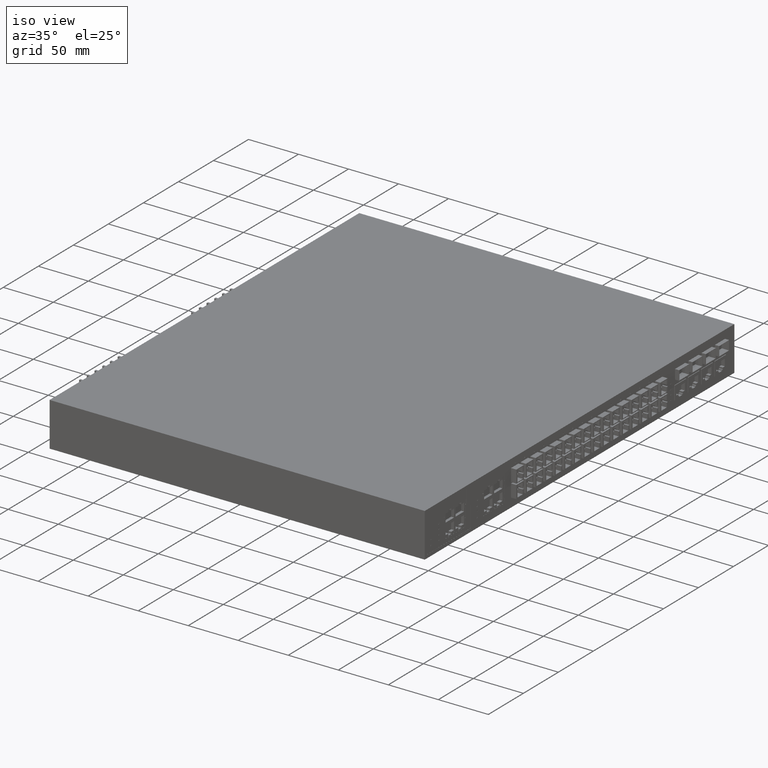
[diagram: clean part render]
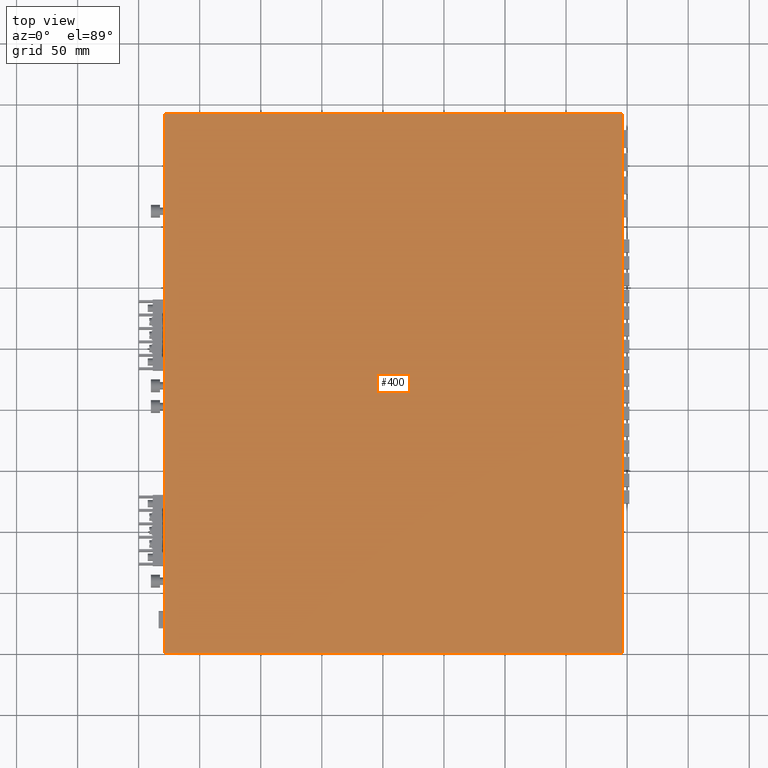
[diagram: tour spotlight — one face highlighted and labeled with its STEP entity id]
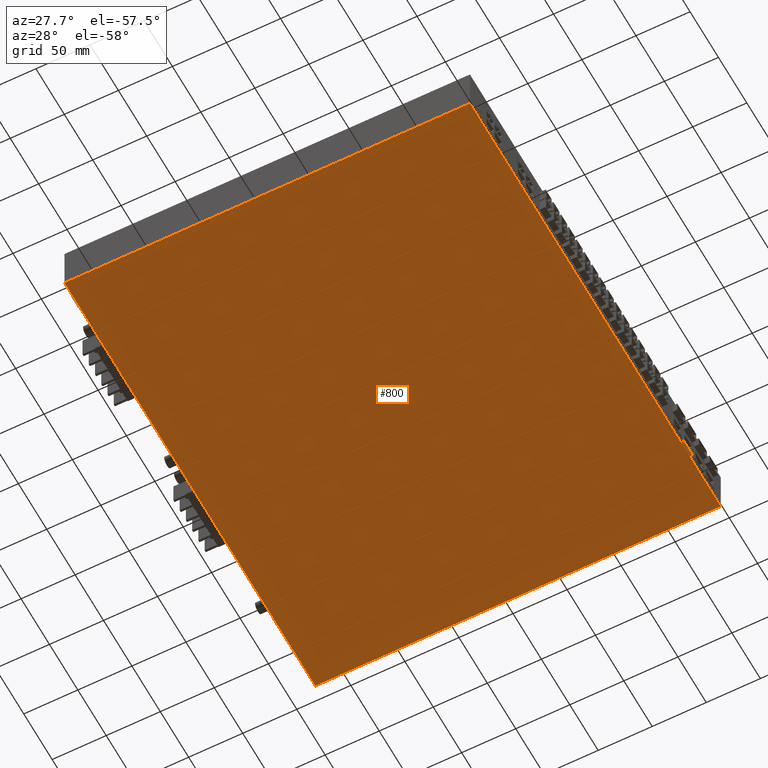
[diagram: tour spotlight — one face highlighted and labeled with its STEP entity id]
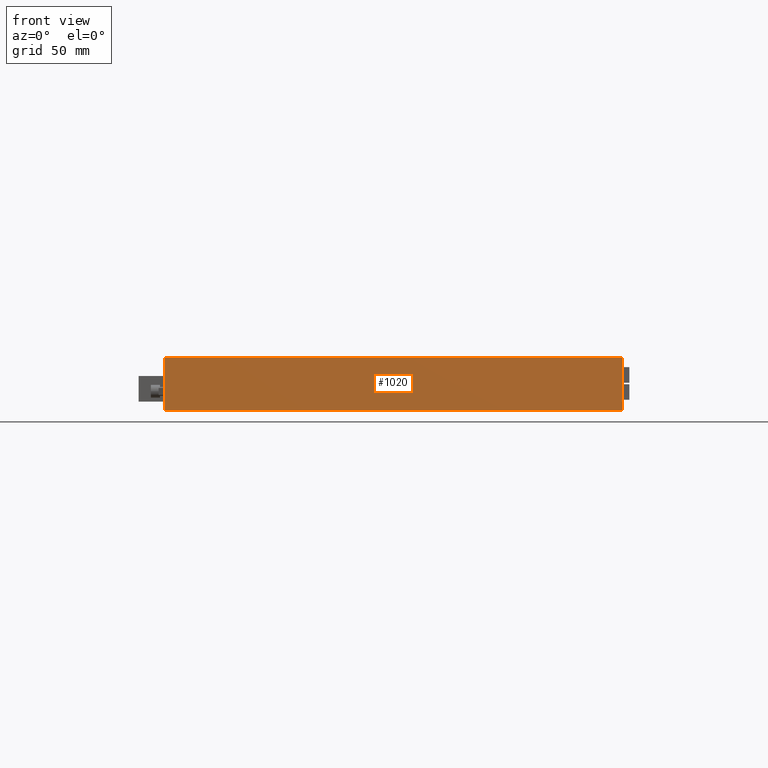
[diagram: tour spotlight — one face highlighted and labeled with its STEP entity id]
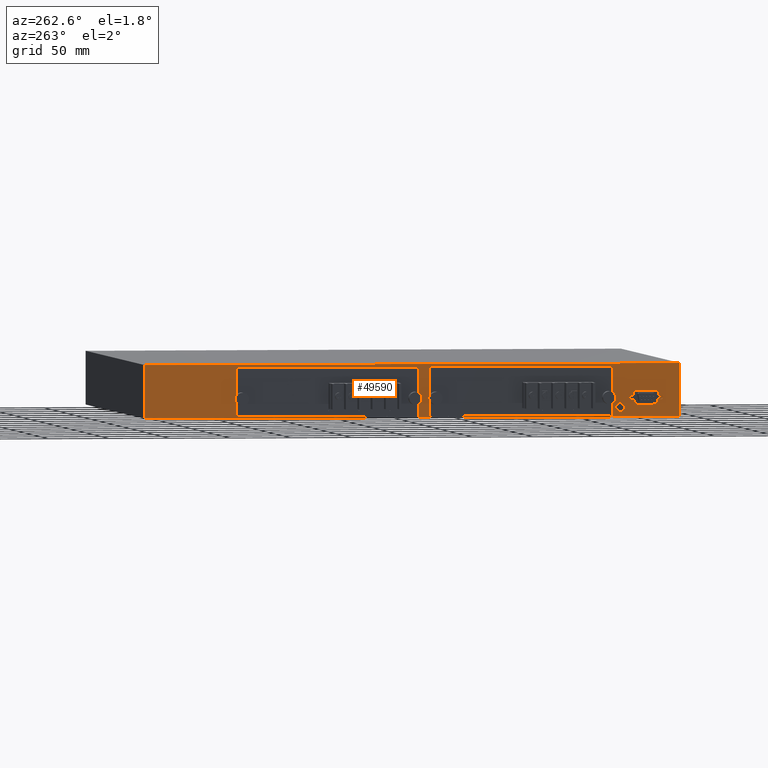
[diagram: tour spotlight — one face highlighted and labeled with its STEP entity id]
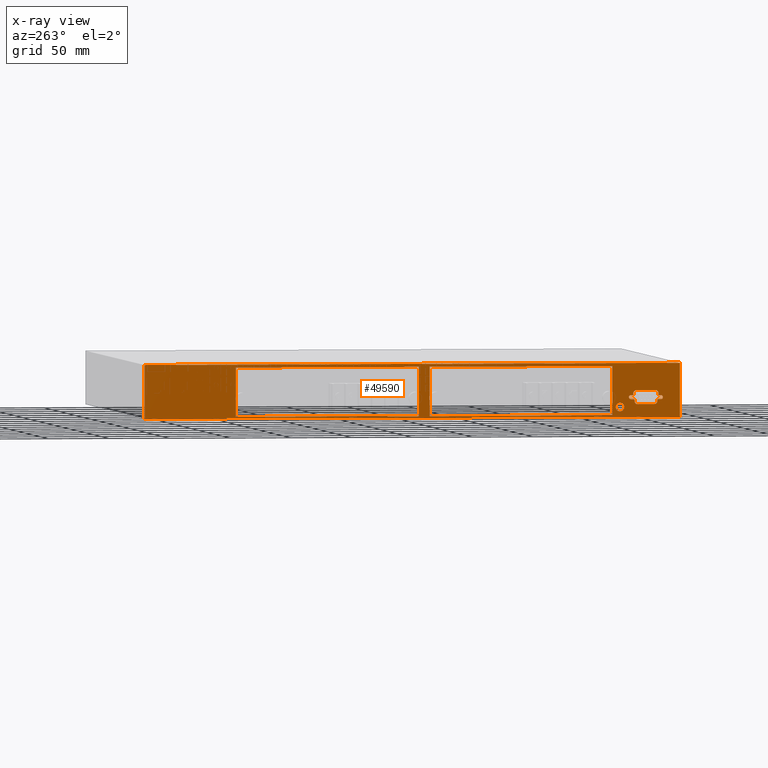
[diagram: x-ray of the same camera — body ghosted, this tour face saturated]
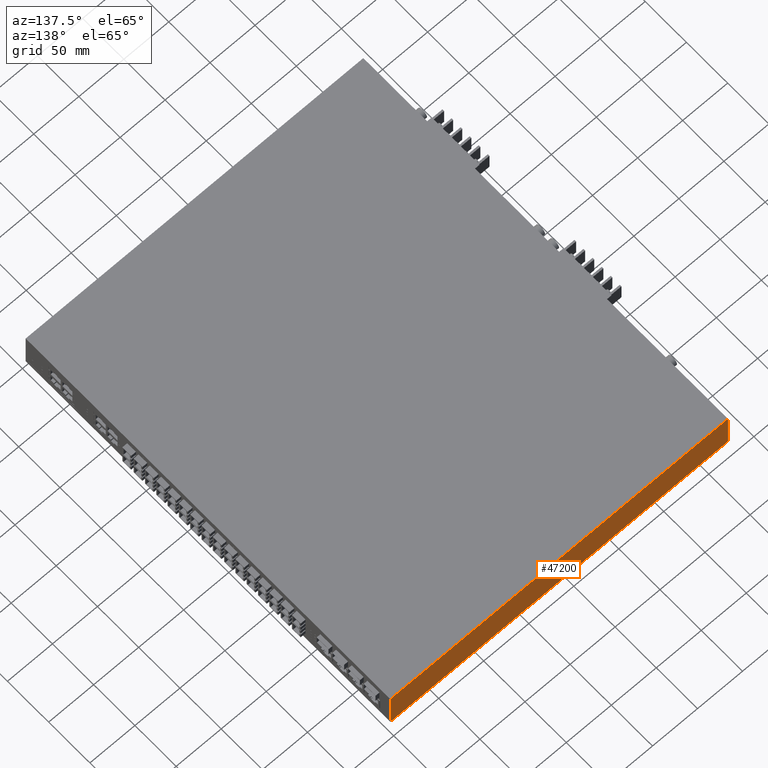
[diagram: tour spotlight — one face highlighted and labeled with its STEP entity id]
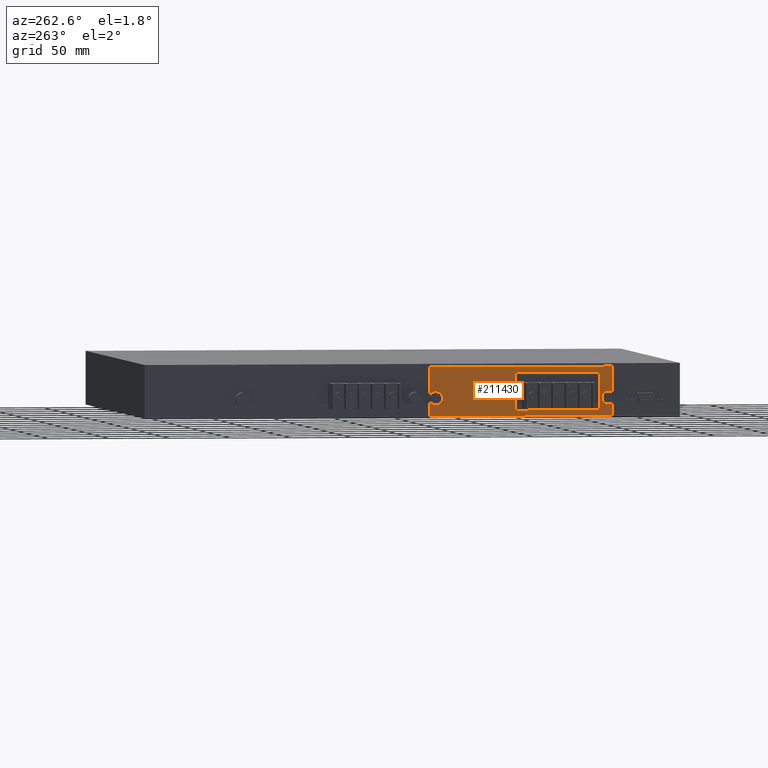
[diagram: tour spotlight — one face highlighted and labeled with its STEP entity id]
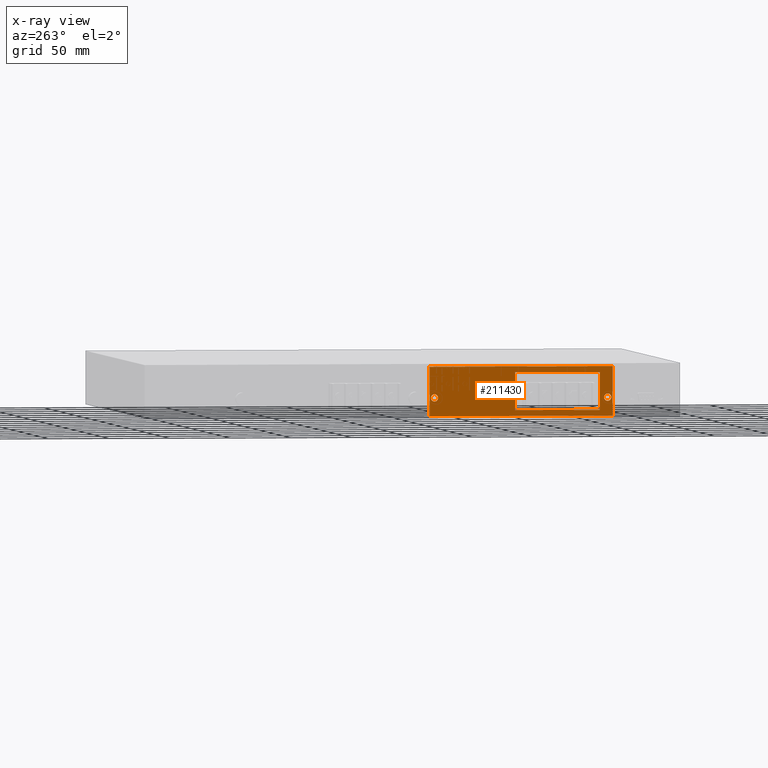
[diagram: x-ray of the same camera — body ghosted, this tour face saturated]
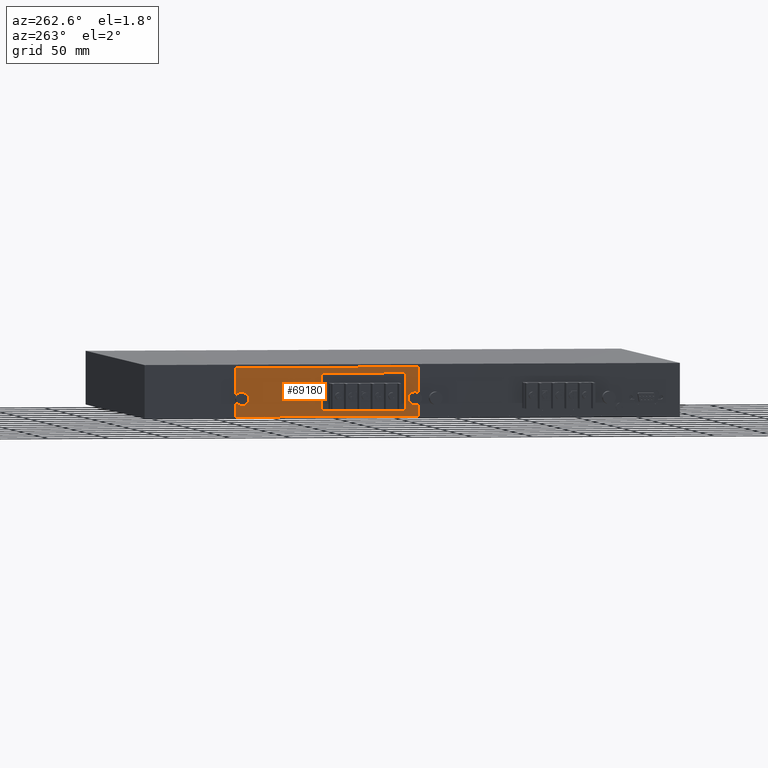
[diagram: tour spotlight — one face highlighted and labeled with its STEP entity id]
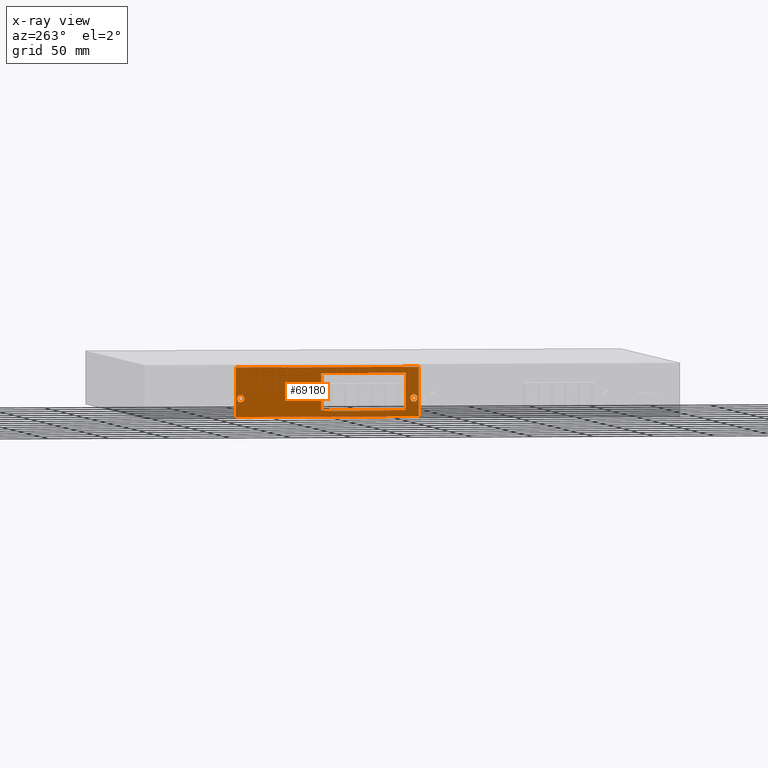
[diagram: x-ray of the same camera — body ghosted, this tour face saturated]
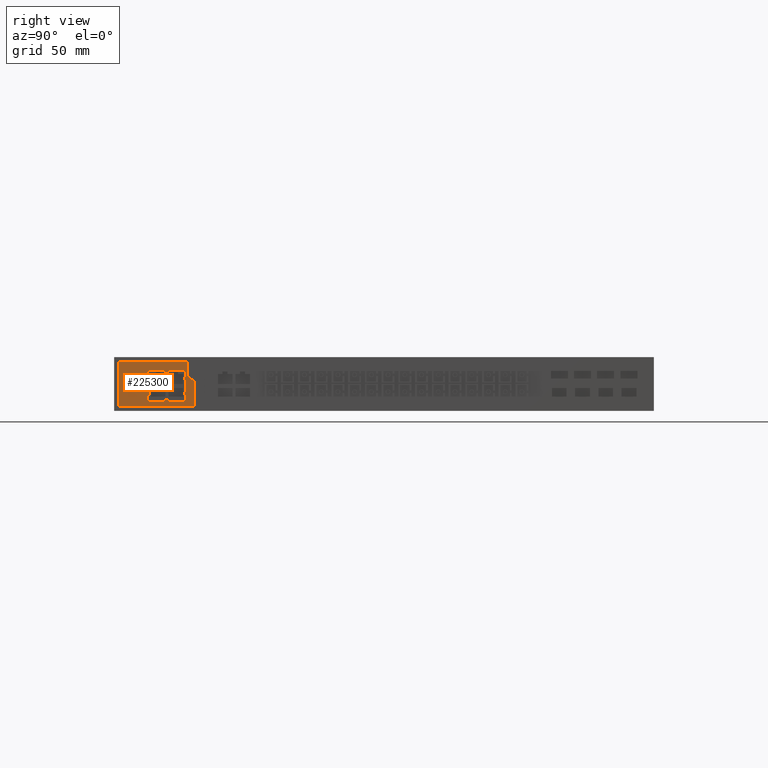
[diagram: tour spotlight — one face highlighted and labeled with its STEP entity id]
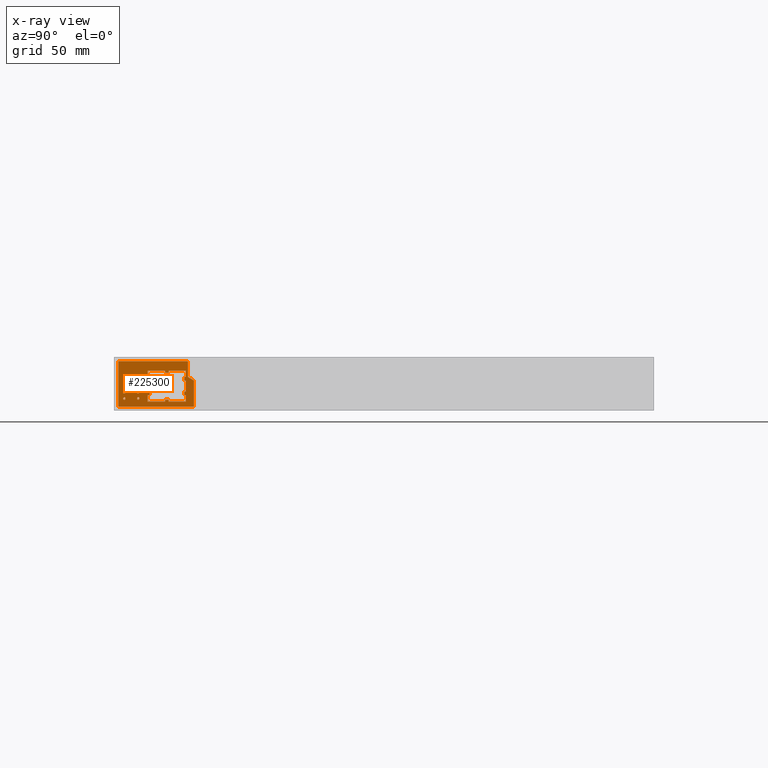
[diagram: x-ray of the same camera — body ghosted, this tour face saturated]
A machine part: a face-by-face anatomy tour. The part has 1324 B-rep faces; the first image is the clean iso view, then the 8 largest visible faces are spotlighted one at a time (largest first), each with its STEP entity span.

Face 1 — top view, entity #400. In plain terms, the highlighted planar face has unit normal (0, 0, 1).
Definition (entity closure, byte-faithful):
#10=CARTESIAN_POINT('',(-231.744053107435,4.40363222366137,
384.37506614998));
#20=DIRECTION('',(-0.,1.,0.));
#30=DIRECTION('',(1.,0.,0.));
#40=AXIS2_PLACEMENT_3D('',#10,#20,#30);
#50=PLANE('',#40);
#60=CARTESIAN_POINT('',(0.,4.40363222366137,-1.97246663447004E-11));
#70=DIRECTION('',(-1.,0.,0.));
#80=VECTOR('',#70,1.);
#90=LINE('',#60,#80);
#100=CARTESIAN_POINT('',(221.306013042565,4.40363222366137,-1.9725E-11))
;
#110=VERTEX_POINT('',#100);
#120=CARTESIAN_POINT('',(-220.693986957435,4.40363222366137,-1.9725E-11)
);
#130=VERTEX_POINT('',#120);
#140=EDGE_CURVE('',#110,#130,#90,.T.);
#150=ORIENTED_EDGE('',*,*,#140,.T.);
#160=CARTESIAN_POINT('',(221.306013042565,4.40363222366137,0.));
#170=DIRECTION('',(0.,0.,1.));
#180=VECTOR('',#170,1.);
#190=LINE('',#160,#180);
#200=CARTESIAN_POINT('',(221.306013042565,4.40363222366137,
374.99999999998));
#210=VERTEX_POINT('',#200);
#220=EDGE_CURVE('',#110,#210,#190,.T.);
#230=ORIENTED_EDGE('',*,*,#220,.F.);
#240=CARTESIAN_POINT('',(0.,4.40363222366137,374.99999999998));
#250=DIRECTION('',(-1.,0.,0.));
#260=VECTOR('',#250,1.);
#270=LINE('',#240,#260);
#280=CARTESIAN_POINT('',(-220.693986957435,4.40363222366137,
374.99999999998));
#290=VERTEX_POINT('',#280);
#300=EDGE_CURVE('',#210,#290,#270,.T.);
#310=ORIENTED_EDGE('',*,*,#300,.F.);
#320=CARTESIAN_POINT('',(-220.693986957435,4.40363222366137,0.));
#330=DIRECTION('',(0.,0.,-1.));
#340=VECTOR('',#330,1.);
#350=LINE('',#320,#340);
#360=EDGE_CURVE('',#290,#130,#350,.T.);
#370=ORIENTED_EDGE('',*,*,#360,.F.);
#380=EDGE_LOOP('',(#370,#310,#230,#150));
#390=FACE_OUTER_BOUND('',#380,.T.);
#400=ADVANCED_FACE('',(#390),#50,.T.);

Face 2 — auxiliary view, entity #800. In plain terms, the highlighted planar face has unit normal (-0, -0, -1).
Definition (entity closure, byte-faithful):
#410=CARTESIAN_POINT('',(232.356079192565,-39.5963677763395,
384.37506614998));
#420=DIRECTION('',(-0.,-1.,-0.));
#430=DIRECTION('',(-1.,0.,0.));
#440=AXIS2_PLACEMENT_3D('',#410,#420,#430);
#450=PLANE('',#440);
#460=CARTESIAN_POINT('',(-220.693986957435,-39.5963677763395,0.));
#470=DIRECTION('',(0.,0.,1.));
#480=VECTOR('',#470,1.);
#490=LINE('',#460,#480);
#500=CARTESIAN_POINT('',(-220.693986957435,-39.5963677763395,-1.9725E-11
));
#510=VERTEX_POINT('',#500);
#520=CARTESIAN_POINT('',(-220.693986957435,-39.5963677763395,
374.99999999998));
#530=VERTEX_POINT('',#520);
#540=EDGE_CURVE('',#510,#530,#490,.T.);
#550=ORIENTED_EDGE('',*,*,#540,.F.);
#560=CARTESIAN_POINT('',(0.,-39.5963677763395,374.99999999998));
#570=DIRECTION('',(1.,0.,0.));
#580=VECTOR('',#570,1.);
#590=LINE('',#560,#580);
#600=CARTESIAN_POINT('',(221.306013042565,-39.5963677763395,
374.99999999998));
#610=VERTEX_POINT('',#600);
#620=EDGE_CURVE('',#530,#610,#590,.T.);
#630=ORIENTED_EDGE('',*,*,#620,.F.);
#640=CARTESIAN_POINT('',(221.306013042565,-39.5963677763395,0.));
#650=DIRECTION('',(0.,0.,-1.));
#660=VECTOR('',#650,1.);
#670=LINE('',#640,#660);
#680=CARTESIAN_POINT('',(221.306013042565,-39.5963677763395,-1.9725E-11)
);
#690=VERTEX_POINT('',#680);
#700=EDGE_CURVE('',#610,#690,#670,.T.);
#710=ORIENTED_EDGE('',*,*,#700,.F.);
#720=CARTESIAN_POINT('',(0.,-39.5963677763395,-1.97246663447004E-11));
#730=DIRECTION('',(1.,0.,0.));
#740=VECTOR('',#730,1.);
#750=LINE('',#720,#740);
#760=EDGE_CURVE('',#510,#690,#750,.T.);
#770=ORIENTED_EDGE('',*,*,#760,.T.);
#780=EDGE_LOOP('',(#770,#710,#630,#550));
#790=FACE_OUTER_BOUND('',#780,.T.);
#800=ADVANCED_FACE('',(#790),#450,.T.);

Face 3 — front view, entity #1020. In plain terms, the highlighted planar face has unit normal (0, -1, 0).
Definition (entity closure, byte-faithful):
#120=CARTESIAN_POINT('',(-220.693986957435,4.40363222366137,-1.9725E-11)
);
#130=VERTEX_POINT('',#120);
#280=CARTESIAN_POINT('',(-220.693986957435,4.40363222366137,
374.99999999998));
#290=VERTEX_POINT('',#280);
#320=CARTESIAN_POINT('',(-220.693986957435,4.40363222366137,0.));
#330=DIRECTION('',(0.,0.,-1.));
#340=VECTOR('',#330,1.);
#350=LINE('',#320,#340);
#360=EDGE_CURVE('',#290,#130,#350,.T.);
#460=CARTESIAN_POINT('',(-220.693986957435,-39.5963677763395,0.));
#470=DIRECTION('',(0.,0.,1.));
#480=VECTOR('',#470,1.);
#490=LINE('',#460,#480);
#500=CARTESIAN_POINT('',(-220.693986957435,-39.5963677763395,-1.9725E-11
));
#510=VERTEX_POINT('',#500);
#520=CARTESIAN_POINT('',(-220.693986957435,-39.5963677763395,
374.99999999998));
#530=VERTEX_POINT('',#520);
#540=EDGE_CURVE('',#510,#530,#490,.T.);
#810=CARTESIAN_POINT('',(-220.693986957435,-40.6964339263395,
384.37506614998));
#820=DIRECTION('',(-1.,0.,0.));
#830=DIRECTION('',(0.,1.,0.));
#840=AXIS2_PLACEMENT_3D('',#810,#820,#830);
#850=PLANE('',#840);
#860=CARTESIAN_POINT('',(-220.693986957435,0.,374.99999999998));
#870=DIRECTION('',(0.,-1.,0.));
#880=VECTOR('',#870,1.);
#890=LINE('',#860,#880);
#900=EDGE_CURVE('',#290,#530,#890,.T.);
#910=ORIENTED_EDGE('',*,*,#900,.F.);
#920=ORIENTED_EDGE('',*,*,#540,.T.);
#930=CARTESIAN_POINT('',(-220.693986957435,0.,-1.97246663447004E-11));
#940=DIRECTION('',(0.,-1.,0.));
#950=VECTOR('',#940,1.);
#960=LINE('',#930,#950);
#970=EDGE_CURVE('',#130,#510,#960,.T.);
#980=ORIENTED_EDGE('',*,*,#970,.T.);
#990=ORIENTED_EDGE('',*,*,#360,.T.);
#1000=EDGE_LOOP('',(#990,#980,#920,#910));
#1010=FACE_OUTER_BOUND('',#1000,.T.);
#1020=ADVANCED_FACE('',(#1010),#850,.T.);

Face 4 — auxiliary view, entity #49590. An x-ray twin of the same camera follows (body ghosted, this face saturated) — the face is partly hidden behind the body. In plain terms, the highlighted planar face has unit normal (-1, 0, 0).
Definition (entity closure, byte-faithful):
#60=CARTESIAN_POINT('',(0.,4.40363222366137,-1.97246663447004E-11));
#70=DIRECTION('',(-1.,0.,0.));
#80=VECTOR('',#70,1.);
#90=LINE('',#60,#80);
#100=CARTESIAN_POINT('',(221.306013042565,4.40363222366137,-1.9725E-11))
;
#110=VERTEX_POINT('',#100);
#120=CARTESIAN_POINT('',(-220.693986957435,4.40363222366137,-1.9725E-11)
);
#130=VERTEX_POINT('',#120);
#140=EDGE_CURVE('',#110,#130,#90,.T.);
#500=CARTESIAN_POINT('',(-220.693986957435,-39.5963677763395,-1.9725E-11
));
#510=VERTEX_POINT('',#500);
#680=CARTESIAN_POINT('',(221.306013042565,-39.5963677763395,-1.9725E-11)
);
#690=VERTEX_POINT('',#680);
#720=CARTESIAN_POINT('',(0.,-39.5963677763395,-1.97246663447004E-11));
#730=DIRECTION('',(1.,0.,0.));
#740=VECTOR('',#730,1.);
#750=LINE('',#720,#740);
#760=EDGE_CURVE('',#510,#690,#750,.T.);
#930=CARTESIAN_POINT('',(-220.693986957435,0.,-1.97246663447004E-11));
#940=DIRECTION('',(0.,-1.,0.));
#950=VECTOR('',#940,1.);
#960=LINE('',#930,#950);
#970=EDGE_CURVE('',#130,#510,#960,.T.);
#47090=CARTESIAN_POINT('',(221.306013042565,0.,-1.97246663447004E-11));
#47100=DIRECTION('',(0.,1.,0.));
#47110=VECTOR('',#47100,1.);
#47120=LINE('',#47090,#47110);
#47130=EDGE_CURVE('',#690,#110,#47120,.T.);
#47210=CARTESIAN_POINT('',(232.356079192565,-40.6964339263395,
-1.97246663447004E-11));
#47220=DIRECTION('',(0.,0.,-1.));
#47230=DIRECTION('',(-1.,0.,0.));
#47240=AXIS2_PLACEMENT_3D('',#47210,#47220,#47230);
#47250=PLANE('',#47240);
#47260=ORIENTED_EDGE('',*,*,#140,.F.);
#47270=ORIENTED_EDGE('',*,*,#970,.F.);
#47280=ORIENTED_EDGE('',*,*,#760,.F.);
#47290=ORIENTED_EDGE('',*,*,#47130,.F.);
#47300=EDGE_LOOP('',(#47290,#47280,#47270,#47260));
#47310=FACE_OUTER_BOUND('',#47300,.T.);
#47320=CARTESIAN_POINT('',(0.,2.0036322236605,-1.97246663447004E-11));
#47330=DIRECTION('',(1.,0.,0.));
#47340=VECTOR('',#47330,1.);
#47350=LINE('',#47320,#47340);
#47360=CARTESIAN_POINT('',(-165.093986957435,2.0036322236605,-1.9725E-11
));
#47370=VERTEX_POINT('',#47360);
#47380=CARTESIAN_POINT('',(-14.0939869574354,2.0036322236605,-1.9725E-11
));
#47390=VERTEX_POINT('',#47380);
#47400=EDGE_CURVE('',#47370,#47390,#47350,.T.);
#47410=ORIENTED_EDGE('',*,*,#47400,.F.);
#47420=CARTESIAN_POINT('',(-14.0939869574354,0.,-1.97246663447004E-11));
#47430=DIRECTION('',(0.,-1.,0.));
#47440=VECTOR('',#47430,1.);
#47450=LINE('',#47420,#47440);
#47460=CARTESIAN_POINT('',(-14.0939869574354,-38.4963677763395,
-1.9725E-11));
#47470=VERTEX_POINT('',#47460);
#47480=EDGE_CURVE('',#47390,#47470,#47450,.T.);
#47490=ORIENTED_EDGE('',*,*,#47480,.F.);
#47500=CARTESIAN_POINT('',(0.,-38.4963677763395,-1.97246663447004E-11));
#47510=DIRECTION('',(-1.,0.,0.));
#47520=VECTOR('',#47510,1.);
#47530=LINE('',#47500,#47520);
#47540=CARTESIAN_POINT('',(-165.093986957435,-38.4963677763395,
-1.9725E-11));
#47550=VERTEX_POINT('',#47540);
#47560=EDGE_CURVE('',#47470,#47550,#47530,.T.);
#47570=ORIENTED_EDGE('',*,*,#47560,.F.);
#47580=CARTESIAN_POINT('',(-165.093986957435,0.,-1.97246663447004E-11));
#47590=DIRECTION('',(0.,1.,0.));
#47600=VECTOR('',#47590,1.);
#47610=LINE('',#47580,#47600);
#47620=EDGE_CURVE('',#47550,#47370,#47610,.T.);
#47630=ORIENTED_EDGE('',*,*,#47620,.F.);
#47640=EDGE_LOOP('',(#47630,#47570,#47490,#47410));
#47650=FACE_BOUND('',#47640,.T.);
#47660=CARTESIAN_POINT('',(0.,-38.4963677763395,-1.97246663447004E-11));
#47670=DIRECTION('',(-1.,0.,0.));
#47680=VECTOR('',#47670,1.);
#47690=LINE('',#47660,#47680);
#47700=CARTESIAN_POINT('',(145.906013042565,-38.4963677763395,
-1.9725E-11));
#47710=VERTEX_POINT('',#47700);
#47720=CARTESIAN_POINT('',(-5.09398695743528,-38.4963677763395,
-1.9725E-11));
#47730=VERTEX_POINT('',#47720);
#47740=EDGE_CURVE('',#47710,#47730,#47690,.T.);
#47750=ORIENTED_EDGE('',*,*,#47740,.F.);
#47760=CARTESIAN_POINT('',(-5.09398695743528,0.,-1.97246663447004E-11));
#47770=DIRECTION('',(0.,1.,0.));
#47780=VECTOR('',#47770,1.);
#47790=LINE('',#47760,#47780);
#47800=CARTESIAN_POINT('',(-5.09398695743528,2.0036322236605,-1.9725E-11
));
#47810=VERTEX_POINT('',#47800);
#47820=EDGE_CURVE('',#47730,#47810,#47790,.T.);
#47830=ORIENTED_EDGE('',*,*,#47820,.F.);
#47840=CARTESIAN_POINT('',(0.,2.0036322236605,-1.97246663447004E-11));
#47850=DIRECTION('',(1.,0.,0.));
#47860=VECTOR('',#47850,1.);
#47870=LINE('',#47840,#47860);
#47880=CARTESIAN_POINT('',(145.906013042565,2.0036322236605,-1.9725E-11)
);
#47890=VERTEX_POINT('',#47880);
#47900=EDGE_CURVE('',#47810,#47890,#47870,.T.);
#47910=ORIENTED_EDGE('',*,*,#47900,.F.);
#47920=CARTESIAN_POINT('',(145.906013042565,0.,-1.97246663447004E-11));
#47930=DIRECTION('',(0.,-1.,0.));
#47940=VECTOR('',#47930,1.);
#47950=LINE('',#47920,#47940);
#47960=EDGE_CURVE('',#47890,#47710,#47950,.T.);
#47970=ORIENTED_EDGE('',*,*,#47960,.F.);
#47980=EDGE_LOOP('',(#47970,#47910,#47830,#47750));
#47990=FACE_BOUND('',#47980,.T.);
#48000=CARTESIAN_POINT('',(0.,-29.2963677763395,-1.97246663447004E-11));
#48010=DIRECTION('',(-1.,0.,0.));
#48020=VECTOR('',#48010,1.);
#48030=LINE('',#48000,#48020);
#48040=CARTESIAN_POINT('',(-185.801863615455,-29.2963677763394,
-1.9725E-11));
#48050=VERTEX_POINT('',#48040);
#48060=CARTESIAN_POINT('',(-199.586110299416,-29.2963677763395,
-1.9725E-11));
#48070=VERTEX_POINT('',#48060);
#48080=EDGE_CURVE('',#48050,#48070,#48030,.T.);
#48090=ORIENTED_EDGE('',*,*,#48080,.F.);
#48100=CARTESIAN_POINT('',(-199.586110299416,-26.7963677763395,
-1.97246663447004E-11));
#48110=DIRECTION('',(0.,0.,1.));
#48120=DIRECTION('',(1.,0.,0.));
#48130=AXIS2_PLACEMENT_3D('',#48100,#48110,#48120);
#48140=CIRCLE('',#48130,2.50000000000003);
#48150=CARTESIAN_POINT('',(-202.048129681946,-27.2304882205068,
-1.9725E-11));
#48160=VERTEX_POINT('',#48150);
#48170=EDGE_CURVE('',#48160,#48070,#48140,.T.);
#48180=ORIENTED_EDGE('',*,*,#48170,.T.);
#48190=CARTESIAN_POINT('',(-206.849599453086,0.,-1.97246663447004E-11));
#48200=DIRECTION('',(-0.173648177666933,0.984807753012208,0.));
#48210=VECTOR('',#48200,1.);
#48220=LINE('',#48190,#48210);
#48230=CARTESIAN_POINT('',(-202.406799998264,-25.1963677763395,
-1.9725E-11));
#48240=VERTEX_POINT('',#48230);
#48250=EDGE_CURVE('',#48160,#48240,#48220,.T.);
#48260=ORIENTED_EDGE('',*,*,#48250,.F.);
#48270=CARTESIAN_POINT('',(0.,-25.1963677763395,-1.97246663447004E-11));
#48280=DIRECTION('',(-1.,0.,0.));
#48290=VECTOR('',#48280,1.);
#48300=LINE('',#48270,#48290);
#48310=CARTESIAN_POINT('',(-205.193986957435,-25.1963677763395,
-1.9725E-11));
#48320=VERTEX_POINT('',#48310);
#48330=EDGE_CURVE('',#48240,#48320,#48300,.T.);
#48340=ORIENTED_EDGE('',*,*,#48330,.F.);
#48350=CARTESIAN_POINT('',(-205.193986957435,-23.5963677763395,
-1.97246663447004E-11));
#48360=DIRECTION('',(0.,0.,1.));
#48370=DIRECTION('',(1.,0.,0.));
#48380=AXIS2_PLACEMENT_3D('',#48350,#48360,#48370);
#48390=CIRCLE('',#48380,1.60000000000001);
#48400=CARTESIAN_POINT('',(-206.793986957435,-23.5963677763395,
-1.97246663447004E-11));
#48410=VERTEX_POINT('',#48400);
#48420=EDGE_CURVE('',#48410,#48320,#48390,.T.);
#48430=ORIENTED_EDGE('',*,*,#48420,.T.);
#48440=CARTESIAN_POINT('',(-205.193986957435,-21.9963677763395,
-1.9725E-11));
#48450=VERTEX_POINT('',#48440);
#48460=EDGE_CURVE('',#48450,#48410,#48390,.T.);
#48470=ORIENTED_EDGE('',*,*,#48460,.T.);
#48480=CARTESIAN_POINT('',(0.,-21.9963677763395,-1.97246663447004E-11));
#48490=DIRECTION('',(1.,0.,0.));
#48500=VECTOR('',#48490,1.);
#48510=LINE('',#48480,#48500);
#48520=CARTESIAN_POINT('',(-202.971046336531,-21.9963677763395,
-1.9725E-11));
#48530=VERTEX_POINT('',#48520);
#48540=EDGE_CURVE('',#48450,#48530,#48510,.T.);
#48550=ORIENTED_EDGE('',*,*,#48540,.F.);
#48560=CARTESIAN_POINT('',(-206.849599453085,0.,-1.97246663447004E-11));
#48570=DIRECTION('',(-0.173648177666922,0.98480775301221,0.));
#48580=VECTOR('',#48570,1.);
#48590=LINE('',#48560,#48580);
#48600=CARTESIAN_POINT('',(-203.17662235848,-20.8304882205068,
-1.9725E-11));
#48610=VERTEX_POINT('',#48600);
#48620=EDGE_CURVE('',#48530,#48610,#48590,.T.);
#48630=ORIENTED_EDGE('',*,*,#48620,.F.);
#48640=CARTESIAN_POINT('',(-200.71460297595,-20.3963677763395,
-1.97246663447004E-11));
#48650=DIRECTION('',(0.,0.,1.));
#48660=DIRECTION('',(1.,0.,0.));
#48670=AXIS2_PLACEMENT_3D('',#48640,#48650,#48660);
#48680=CIRCLE('',#48670,2.50000000000001);
#48690=CARTESIAN_POINT('',(-200.71460297595,-17.8963677763395,
-1.9725E-11));
#48700=VERTEX_POINT('',#48690);
#48710=EDGE_CURVE('',#48700,#48610,#48680,.T.);
#48720=ORIENTED_EDGE('',*,*,#48710,.T.);
#48730=CARTESIAN_POINT('',(0.,-17.8963677763394,-1.97246663447004E-11));
#48740=DIRECTION('',(1.,0.,0.));
#48750=VECTOR('',#48740,1.);
#48760=LINE('',#48730,#48750);
#48770=CARTESIAN_POINT('',(-184.673370938921,-17.8963677763394,
-1.9725E-11));
#48780=VERTEX_POINT('',#48770);
#48790=EDGE_CURVE('',#48700,#48780,#48760,.T.);
#48800=ORIENTED_EDGE('',*,*,#48790,.F.);
#48810=CARTESIAN_POINT('',(-184.673370938921,-20.3963677763394,
-1.97246663447004E-11));
#48820=DIRECTION('',(0.,0.,1.));
#48830=DIRECTION('',(1.,0.,0.));
#48840=AXIS2_PLACEMENT_3D('',#48810,#48820,#48830);
#48850=CIRCLE('',#48840,2.49999999999997);
#48860=CARTESIAN_POINT('',(-182.21135155639,-20.8304882205068,
-1.9725E-11));
#48870=VERTEX_POINT('',#48860);
#48880=EDGE_CURVE('',#48870,#48780,#48850,.T.);
#48890=ORIENTED_EDGE('',*,*,#48880,.T.);
#48900=CARTESIAN_POINT('',(-178.538374461785,0.,-1.97246663447004E-11));
#48910=DIRECTION('',(-0.173648177666922,-0.98480775301221,0.));
#48920=VECTOR('',#48910,1.);
#48930=LINE('',#48900,#48920);
#48940=CARTESIAN_POINT('',(-182.41692757834,-21.9963677763394,
-1.9725E-11));
#48950=VERTEX_POINT('',#48940);
#48960=EDGE_CURVE('',#48870,#48950,#48930,.T.);
#48970=ORIENTED_EDGE('',*,*,#48960,.F.);
#48980=CARTESIAN_POINT('',(0.,-21.9963677763394,-1.97246663447004E-11));
#48990=DIRECTION('',(1.,0.,0.));
#49000=VECTOR('',#48990,1.);
#49010=LINE('',#48980,#49000);
#49020=CARTESIAN_POINT('',(-180.193986957435,-21.9963677763394,
-1.9725E-11));
#49030=VERTEX_POINT('',#49020);
#49040=EDGE_CURVE('',#48950,#49030,#49010,.T.);
#49050=ORIENTED_EDGE('',*,*,#49040,.F.);
#49060=CARTESIAN_POINT('',(-180.193986957435,-23.5963677763395,
-1.97246663447004E-11));
#49070=DIRECTION('',(0.,0.,1.));
#49080=DIRECTION('',(1.,0.,0.));
#49090=AXIS2_PLACEMENT_3D('',#49060,#49070,#49080);
#49100=CIRCLE('',#49090,1.59999999999995);
#49110=CARTESIAN_POINT('',(-178.593986957435,-23.5963677763395,
-1.97246663447004E-11));
#49120=VERTEX_POINT('',#49110);
#49130=EDGE_CURVE('',#49120,#49030,#49100,.T.);
#49140=ORIENTED_EDGE('',*,*,#49130,.T.);
#49150=CARTESIAN_POINT('',(-180.193986957435,-25.1963677763394,
-1.9725E-11));
#49160=VERTEX_POINT('',#49150);
#49170=EDGE_CURVE('',#49160,#49120,#49100,.T.);
#49180=ORIENTED_EDGE('',*,*,#49170,.T.);
#49190=CARTESIAN_POINT('',(0.,-25.1963677763394,-1.97246663447004E-11));
#49200=DIRECTION('',(-1.,0.,0.));
#49210=VECTOR('',#49200,1.);
#49220=LINE('',#49190,#49210);
#49230=CARTESIAN_POINT('',(-182.981173916607,-25.1963677763394,
-1.9725E-11));
#49240=VERTEX_POINT('',#49230);
#49250=EDGE_CURVE('',#49160,#49240,#49220,.T.);
#49260=ORIENTED_EDGE('',*,*,#49250,.F.);
#49270=CARTESIAN_POINT('',(-178.538374461786,0.,-1.97246663447004E-11));
#49280=DIRECTION('',(-0.173648177666909,-0.984807753012212,0.));
#49290=VECTOR('',#49280,1.);
#49300=LINE('',#49270,#49290);
#49310=CARTESIAN_POINT('',(-183.339844232924,-27.2304882205067,
-1.9725E-11));
#49320=VERTEX_POINT('',#49310);
#49330=EDGE_CURVE('',#49240,#49320,#49300,.T.);
#49340=ORIENTED_EDGE('',*,*,#49330,.F.);
#49350=CARTESIAN_POINT('',(-185.801863615455,-26.7963677763398,
-1.97246663447004E-11));
#49360=DIRECTION('',(0.,0.,1.));
#49370=DIRECTION('',(1.,0.,0.));
#49380=AXIS2_PLACEMENT_3D('',#49350,#49360,#49370);
#49390=CIRCLE('',#49380,2.49999999999958);
#49400=EDGE_CURVE('',#48050,#49320,#49390,.T.);
#49410=ORIENTED_EDGE('',*,*,#49400,.T.);
#49420=EDGE_LOOP('',(#49410,#49340,#49260,#49180,#49140,#49050,#48970,
#48890,#48800,#48720,#48630,#48550,#48470,#48430,#48340,#48260,#48180,
#48090));
#49430=FACE_BOUND('',#49420,.T.);
#49440=CARTESIAN_POINT('',(-171.293986957435,-31.5963677763395,
-1.97246663447004E-11));
#49450=DIRECTION('',(0.,0.,-1.));
#49460=DIRECTION('',(-1.,0.,0.));
#49470=AXIS2_PLACEMENT_3D('',#49440,#49450,#49460);
#49480=CIRCLE('',#49470,3.50000000000002);
#49490=CARTESIAN_POINT('',(-167.793986957435,-31.5963677763395,
-1.97249994116078E-11));
#49500=VERTEX_POINT('',#49490);
#49510=CARTESIAN_POINT('',(-174.793986957435,-31.5963677763395,
-1.97246663447004E-11));
#49520=VERTEX_POINT('',#49510);
#49530=EDGE_CURVE('',#49500,#49520,#49480,.T.);
#49540=ORIENTED_EDGE('',*,*,#49530,.F.);
#49550=EDGE_CURVE('',#49520,#49500,#49480,.T.);
#49560=ORIENTED_EDGE('',*,*,#49550,.F.);
#49570=EDGE_LOOP('',(#49560,#49540));
#49580=FACE_BOUND('',#49570,.T.);
#49590=ADVANCED_FACE('',(#47310,#47650,#47990,#49430,#49580),#47250,.T.)
;

Face 5 — auxiliary view, entity #47200. In plain terms, the highlighted planar face has unit normal (0, 1, 0).
Definition (entity closure, byte-faithful):
#100=CARTESIAN_POINT('',(221.306013042565,4.40363222366137,-1.9725E-11))
;
#110=VERTEX_POINT('',#100);
#160=CARTESIAN_POINT('',(221.306013042565,4.40363222366137,0.));
#170=DIRECTION('',(0.,0.,1.));
#180=VECTOR('',#170,1.);
#190=LINE('',#160,#180);
#200=CARTESIAN_POINT('',(221.306013042565,4.40363222366137,
374.99999999998));
#210=VERTEX_POINT('',#200);
#220=EDGE_CURVE('',#110,#210,#190,.T.);
#600=CARTESIAN_POINT('',(221.306013042565,-39.5963677763395,
374.99999999998));
#610=VERTEX_POINT('',#600);
#640=CARTESIAN_POINT('',(221.306013042565,-39.5963677763395,0.));
#650=DIRECTION('',(0.,0.,-1.));
#660=VECTOR('',#650,1.);
#670=LINE('',#640,#660);
#680=CARTESIAN_POINT('',(221.306013042565,-39.5963677763395,-1.9725E-11)
);
#690=VERTEX_POINT('',#680);
#700=EDGE_CURVE('',#610,#690,#670,.T.);
#1080=CARTESIAN_POINT('',(221.306013042565,0.,374.99999999998));
#1090=DIRECTION('',(0.,1.,0.));
#1100=VECTOR('',#1090,1.);
#1110=LINE('',#1080,#1100);
#1120=EDGE_CURVE('',#610,#210,#1110,.T.);
#47040=CARTESIAN_POINT('',(221.306013042565,5.50369837366139,
384.37506614998));
#47050=DIRECTION('',(1.,0.,0.));
#47060=DIRECTION('',(0.,-1.,0.));
#47070=AXIS2_PLACEMENT_3D('',#47040,#47050,#47060);
#47080=PLANE('',#47070);
#47090=CARTESIAN_POINT('',(221.306013042565,0.,-1.97246663447004E-11));
#47100=DIRECTION('',(0.,1.,0.));
#47110=VECTOR('',#47100,1.);
#47120=LINE('',#47090,#47110);
#47130=EDGE_CURVE('',#690,#110,#47120,.T.);
#47140=ORIENTED_EDGE('',*,*,#47130,.T.);
#47150=ORIENTED_EDGE('',*,*,#700,.T.);
#47160=ORIENTED_EDGE('',*,*,#1120,.F.);
#47170=ORIENTED_EDGE('',*,*,#220,.T.);
#47180=EDGE_LOOP('',(#47170,#47160,#47150,#47140));
#47190=FACE_OUTER_BOUND('',#47180,.T.);
#47200=ADVANCED_FACE('',(#47190),#47080,.T.);

Face 6 — auxiliary view, entity #211430. An x-ray twin of the same camera follows (body ghosted, this face saturated) — the face is partly hidden behind the body. In plain terms, the highlighted planar face has unit normal (-1, 0, 0).
Definition (entity closure, byte-faithful):
#83600=CARTESIAN_POINT('',(-14.0939869574354,0.,0.09999999998027));
#83610=DIRECTION('',(0.,1.,0.));
#83620=VECTOR('',#83610,1.);
#83630=LINE('',#83600,#83620);
#83640=CARTESIAN_POINT('',(-14.0939869574354,-38.4963677763395,
0.09999999998027));
#83650=VERTEX_POINT('',#83640);
#83660=CARTESIAN_POINT('',(-14.0939869574354,2.0036322236605,
0.09999999998027));
#83670=VERTEX_POINT('',#83660);
#83680=EDGE_CURVE('',#83650,#83670,#83630,.T.);
#83980=CARTESIAN_POINT('',(0.,-38.4963677763395,0.09999999998027));
#83990=DIRECTION('',(1.,0.,0.));
#84000=VECTOR('',#83990,1.);
#84010=LINE('',#83980,#84000);
#84020=CARTESIAN_POINT('',(-165.093986957435,-38.4963677763395,
0.09999999998027));
#84030=VERTEX_POINT('',#84020);
#84040=EDGE_CURVE('',#84030,#83650,#84010,.T.);
#161090=CARTESIAN_POINT('',(-154.593986957435,-2.79636777633966,
0.09999999998027));
#161100=VERTEX_POINT('',#161090);
#161130=CARTESIAN_POINT('',(-154.593986957435,0.,0.09999999998027));
#161140=DIRECTION('',(0.,1.,0.));
#161150=VECTOR('',#161140,1.);
#161160=LINE('',#161130,#161150);
#161170=CARTESIAN_POINT('',(-154.593986957435,-33.7963677763396,
0.09999999998027));
#161180=VERTEX_POINT('',#161170);
#161190=EDGE_CURVE('',#161180,#161100,#161160,.T.);
#161510=CARTESIAN_POINT('',(0.,-33.7963677763396,0.09999999998027));
#161520=DIRECTION('',(-1.,0.,0.));
#161530=VECTOR('',#161520,1.);
#161540=LINE('',#161510,#161530);
#161550=CARTESIAN_POINT('',(-84.593986957435,-33.7963677763396,
0.09999999998027));
#161560=VERTEX_POINT('',#161550);
#161570=EDGE_CURVE('',#161560,#161180,#161540,.T.);
#161820=CARTESIAN_POINT('',(-84.593986957435,0.,0.09999999998027));
#161830=DIRECTION('',(0.,-1.,0.));
#161840=VECTOR('',#161830,1.);
#161850=LINE('',#161820,#161840);
#161860=CARTESIAN_POINT('',(-84.593986957435,-2.79636777633966,
0.09999999998027));
#161870=VERTEX_POINT('',#161860);
#161880=EDGE_CURVE('',#161870,#161560,#161850,.T.);
#162110=CARTESIAN_POINT('',(0.,-2.79636777633966,0.09999999998027));
#162120=DIRECTION('',(1.,0.,0.));
#162130=VECTOR('',#162120,1.);
#162140=LINE('',#162110,#162130);
#162150=EDGE_CURVE('',#161100,#161870,#162140,.T.);
#182890=CARTESIAN_POINT('',(-165.093986957435,0.,0.09999999998027));
#182900=DIRECTION('',(0.,-1.,0.));
#182910=VECTOR('',#182900,1.);
#182920=LINE('',#182890,#182910);
#182930=CARTESIAN_POINT('',(-165.093986957435,2.0036322236605,
0.09999999998027));
#182940=VERTEX_POINT('',#182930);
#182950=EDGE_CURVE('',#182940,#84030,#182920,.T.);
#209100=CARTESIAN_POINT('',(-164.093986957435,-23.4963677763395,
0.0999999999802696));
#209110=VERTEX_POINT('',#209100);
#209140=CARTESIAN_POINT('',(-161.093986957435,-23.4963677763395,
0.0999999999802696));
#209150=DIRECTION('',(0.,0.,1.));
#209160=DIRECTION('',(1.,0.,0.));
#209170=AXIS2_PLACEMENT_3D('',#209140,#209150,#209160);
#209180=CIRCLE('',#209170,3.00000000000001);
#209190=CARTESIAN_POINT('',(-158.093986957435,-23.4963677763395,
0.0999999999802696));
#209200=VERTEX_POINT('',#209190);
#209210=EDGE_CURVE('',#209110,#209200,#209180,.T.);
#210810=CARTESIAN_POINT('',(-21.0939869574354,-23.4963677763395,
0.0999999999802696));
#210820=VERTEX_POINT('',#210810);
#210850=CARTESIAN_POINT('',(-18.0939869574354,-23.4963677763395,
0.0999999999802696));
#210860=DIRECTION('',(0.,0.,1.));
#210870=DIRECTION('',(1.,0.,0.));
#210880=AXIS2_PLACEMENT_3D('',#210850,#210860,#210870);
#210890=CIRCLE('',#210880,2.99999999999999);
#210900=CARTESIAN_POINT('',(-15.0939869574354,-23.4963677763395,
0.0999999999802696));
#210910=VERTEX_POINT('',#210900);
#210920=EDGE_CURVE('',#210820,#210910,#210890,.T.);
#211110=CARTESIAN_POINT('',(-10.3189208074354,-39.5089339263395,
0.09999999998027));
#211120=DIRECTION('',(0.,0.,-1.));
#211130=DIRECTION('',(-1.,0.,0.));
#211140=AXIS2_PLACEMENT_3D('',#211110,#211120,#211130);
#211150=PLANE('',#211140);
#211160=ORIENTED_EDGE('',*,*,#83680,.F.);
#211170=CARTESIAN_POINT('',(0.,2.0036322236605,0.09999999998027));
#211180=DIRECTION('',(-1.,0.,0.));
#211190=VECTOR('',#211180,1.);
#211200=LINE('',#211170,#211190);
#211210=EDGE_CURVE('',#83670,#182940,#211200,.T.);
#211220=ORIENTED_EDGE('',*,*,#211210,.F.);
#211230=ORIENTED_EDGE('',*,*,#182950,.F.);
#211240=ORIENTED_EDGE('',*,*,#84040,.F.);
#211250=EDGE_LOOP('',(#211240,#211230,#211220,#211160));
#211260=FACE_OUTER_BOUND('',#211250,.T.);
#211270=ORIENTED_EDGE('',*,*,#210920,.T.);
#211280=EDGE_CURVE('',#210910,#210820,#210890,.T.);
#211290=ORIENTED_EDGE('',*,*,#211280,.T.);
#211300=EDGE_LOOP('',(#211290,#211270));
#211310=FACE_BOUND('',#211300,.T.);
#211320=ORIENTED_EDGE('',*,*,#209210,.T.);
#211330=EDGE_CURVE('',#209200,#209110,#209180,.T.);
#211340=ORIENTED_EDGE('',*,*,#211330,.T.);
#211350=EDGE_LOOP('',(#211340,#211320));
#211360=FACE_BOUND('',#211350,.T.);
#211370=ORIENTED_EDGE('',*,*,#161190,.F.);
#211380=ORIENTED_EDGE('',*,*,#162150,.F.);
#211390=ORIENTED_EDGE('',*,*,#161880,.F.);
#211400=ORIENTED_EDGE('',*,*,#161570,.F.);
#211410=EDGE_LOOP('',(#211400,#211390,#211380,#211370));
#211420=FACE_BOUND('',#211410,.T.);
#211430=ADVANCED_FACE('',(#211260,#211310,#211360,#211420),#211150,.T.);

Face 7 — auxiliary view, entity #69180. An x-ray twin of the same camera follows (body ghosted, this face saturated) — the face is partly hidden behind the body. In plain terms, the highlighted planar face has unit normal (-1, 0, 0).
Definition (entity closure, byte-faithful):
#68150=CARTESIAN_POINT('',(149.681079192565,-39.5089339263395,
0.09999999998027));
#68160=DIRECTION('',(0.,0.,-1.));
#68170=DIRECTION('',(-1.,0.,0.));
#68180=AXIS2_PLACEMENT_3D('',#68150,#68160,#68170);
#68190=PLANE('',#68180);
#68200=CARTESIAN_POINT('',(145.906013042565,0.,0.09999999998027));
#68210=DIRECTION('',(0.,1.,0.));
#68220=VECTOR('',#68210,1.);
#68230=LINE('',#68200,#68220);
#68240=CARTESIAN_POINT('',(145.906013042565,-38.4963677763395,
0.09999999998027));
#68250=VERTEX_POINT('',#68240);
#68260=CARTESIAN_POINT('',(145.906013042565,2.0036322236605,
0.09999999998027));
#68270=VERTEX_POINT('',#68260);
#68280=EDGE_CURVE('',#68250,#68270,#68230,.T.);
#68290=ORIENTED_EDGE('',*,*,#68280,.F.);
#68300=CARTESIAN_POINT('',(0.,2.0036322236605,0.09999999998027));
#68310=DIRECTION('',(-1.,0.,0.));
#68320=VECTOR('',#68310,1.);
#68330=LINE('',#68300,#68320);
#68340=CARTESIAN_POINT('',(-5.09398695743528,2.0036322236605,
0.09999999998027));
#68350=VERTEX_POINT('',#68340);
#68360=EDGE_CURVE('',#68270,#68350,#68330,.T.);
#68370=ORIENTED_EDGE('',*,*,#68360,.F.);
#68380=CARTESIAN_POINT('',(-5.09398695743528,0.,0.09999999998027));
#68390=DIRECTION('',(0.,-1.,0.));
#68400=VECTOR('',#68390,1.);
#68410=LINE('',#68380,#68400);
#68420=CARTESIAN_POINT('',(-5.09398695743535,-38.4963677763395,
0.09999999998027));
#68430=VERTEX_POINT('',#68420);
#68440=EDGE_CURVE('',#68350,#68430,#68410,.T.);
#68450=ORIENTED_EDGE('',*,*,#68440,.F.);
#68460=CARTESIAN_POINT('',(0.,-38.4963677763395,0.09999999998027));
#68470=DIRECTION('',(1.,0.,0.));
#68480=VECTOR('',#68470,1.);
#68490=LINE('',#68460,#68480);
#68500=EDGE_CURVE('',#68430,#68250,#68490,.T.);
#68510=ORIENTED_EDGE('',*,*,#68500,.F.);
#68520=EDGE_LOOP('',(#68510,#68450,#68370,#68290));
#68530=FACE_OUTER_BOUND('',#68520,.T.);
#68540=CARTESIAN_POINT('',(141.906013042565,-23.4963677763394,
0.0999999999802696));
#68550=DIRECTION('',(0.,0.,1.));
#68560=DIRECTION('',(1.,0.,0.));
#68570=AXIS2_PLACEMENT_3D('',#68540,#68550,#68560);
#68580=CIRCLE('',#68570,2.99999999999999);
#68590=CARTESIAN_POINT('',(144.906013042565,-23.4963677763394,
0.0999999999802696));
#68600=VERTEX_POINT('',#68590);
#68610=CARTESIAN_POINT('',(138.906013042565,-23.4963677763394,
0.0999999999802696));
#68620=VERTEX_POINT('',#68610);
#68630=EDGE_CURVE('',#68600,#68620,#68580,.T.);
#68640=ORIENTED_EDGE('',*,*,#68630,.T.);
#68650=EDGE_CURVE('',#68620,#68600,#68580,.T.);
#68660=ORIENTED_EDGE('',*,*,#68650,.T.);
#68670=EDGE_LOOP('',(#68660,#68640));
#68680=FACE_BOUND('',#68670,.T.);
#68690=CARTESIAN_POINT('',(-1.09398695743536,-23.4963677763395,
0.0999999999802696));
#68700=DIRECTION('',(0.,0.,1.));
#68710=DIRECTION('',(1.,0.,0.));
#68720=AXIS2_PLACEMENT_3D('',#68690,#68700,#68710);
#68730=CIRCLE('',#68720,2.99999999999999);
#68740=CARTESIAN_POINT('',(-4.09398695743535,-23.4963677763395,
0.0999999999802696));
#68750=VERTEX_POINT('',#68740);
#68760=CARTESIAN_POINT('',(1.90601304256463,-23.4963677763395,
0.0999999999802696));
#68770=VERTEX_POINT('',#68760);
#68780=EDGE_CURVE('',#68750,#68770,#68730,.T.);
#68790=ORIENTED_EDGE('',*,*,#68780,.T.);
#68800=EDGE_CURVE('',#68770,#68750,#68730,.T.);
#68810=ORIENTED_EDGE('',*,*,#68800,.T.);
#68820=EDGE_LOOP('',(#68810,#68790));
#68830=FACE_BOUND('',#68820,.T.);
#68840=CARTESIAN_POINT('',(5.40601304256532,0.,0.09999999998027));
#68850=DIRECTION('',(0.,1.,0.));
#68860=VECTOR('',#68850,1.);
#68870=LINE('',#68840,#68860);
#68880=CARTESIAN_POINT('',(5.40601304256532,-33.7963677763396,
0.09999999998027));
#68890=VERTEX_POINT('',#68880);
#68900=CARTESIAN_POINT('',(5.40601304256532,-2.79636777633966,
0.09999999998027));
#68910=VERTEX_POINT('',#68900);
#68920=EDGE_CURVE('',#68890,#68910,#68870,.T.);
#68930=ORIENTED_EDGE('',*,*,#68920,.F.);
#68940=CARTESIAN_POINT('',(0.,-2.79636777633966,0.09999999998027));
#68950=DIRECTION('',(1.,0.,0.));
#68960=VECTOR('',#68950,1.);
#68970=LINE('',#68940,#68960);
#68980=CARTESIAN_POINT('',(75.406013042565,-2.79636777633966,
0.09999999998027));
#68990=VERTEX_POINT('',#68980);
#69000=EDGE_CURVE('',#68910,#68990,#68970,.T.);
#69010=ORIENTED_EDGE('',*,*,#69000,.F.);
#69020=CARTESIAN_POINT('',(75.406013042565,0.,0.09999999998027));
#69030=DIRECTION('',(0.,-1.,0.));
#69040=VECTOR('',#69030,1.);
#69050=LINE('',#69020,#69040);
#69060=CARTESIAN_POINT('',(75.406013042565,-33.7963677763396,
0.09999999998027));
#69070=VERTEX_POINT('',#69060);
#69080=EDGE_CURVE('',#68990,#69070,#69050,.T.);
#69090=ORIENTED_EDGE('',*,*,#69080,.F.);
#69100=CARTESIAN_POINT('',(0.,-33.7963677763396,0.09999999998027));
#69110=DIRECTION('',(-1.,0.,0.));
#69120=VECTOR('',#69110,1.);
#69130=LINE('',#69100,#69120);
#69140=EDGE_CURVE('',#69070,#68890,#69130,.T.);
#69150=ORIENTED_EDGE('',*,*,#69140,.F.);
#69160=EDGE_LOOP('',(#69150,#69090,#69010,#68930));
#69170=FACE_BOUND('',#69160,.T.);
#69180=ADVANCED_FACE('',(#68530,#68680,#68830,#69170),#68190,.T.);

Face 8 — right view, entity #225300. An x-ray twin of the same camera follows (body ghosted, this face saturated) — the face is partly hidden behind the body. In plain terms, the highlighted planar face has unit normal (1, 0, 0).
Definition (entity closure, byte-faithful):
#74490=CARTESIAN_POINT('',(0.,1.05363198524305,374.89999999998));
#74500=DIRECTION('',(-1.,0.,0.));
#74510=VECTOR('',#74500,1.);
#74520=LINE('',#74490,#74510);
#74530=CARTESIAN_POINT('',(-160.3439877919,1.05363198524305,
374.89999999998));
#74540=VERTEX_POINT('',#74530);
#74550=CARTESIAN_POINT('',(-217.3439877919,1.05363198524305,
374.89999999998));
#74560=VERTEX_POINT('',#74550);
#74570=EDGE_CURVE('',#74540,#74560,#74520,.T.);
#74870=CARTESIAN_POINT('',(-160.3439877919,0.,374.89999999998));
#74880=DIRECTION('',(0.,1.,0.));
#74890=VECTOR('',#74880,1.);
#74900=LINE('',#74870,#74890);
#74910=CARTESIAN_POINT('',(-160.3439877919,-11.8563677763395,
374.89999999998));
#74920=VERTEX_POINT('',#74910);
#74930=EDGE_CURVE('',#74920,#74540,#74900,.T.);
#75180=CARTESIAN_POINT('',(0.,-104.431012290931,374.89999999998));
#75190=DIRECTION('',(-0.866025403784439,0.5,0.));
#75200=VECTOR('',#75190,1.);
#75210=LINE('',#75180,#75200);
#75220=CARTESIAN_POINT('',(-155.3439877919,-14.7431191222876,
374.89999999998));
#75230=VERTEX_POINT('',#75220);
#75240=EDGE_CURVE('',#75230,#74920,#75210,.T.);
#75490=CARTESIAN_POINT('',(-155.3439877919,0.,374.89999999998));
#75500=DIRECTION('',(0.,1.,0.));
#75510=VECTOR('',#75500,1.);
#75520=LINE('',#75490,#75510);
#75530=CARTESIAN_POINT('',(-155.3439877919,-36.2463677763384,
374.89999999998));
#75540=VERTEX_POINT('',#75530);
#75550=EDGE_CURVE('',#75540,#75230,#75520,.T.);
#75800=CARTESIAN_POINT('',(0.,-36.2463677763384,374.89999999998));
#75810=DIRECTION('',(1.,0.,0.));
#75820=VECTOR('',#75810,1.);
#75830=LINE('',#75800,#75820);
#75840=CARTESIAN_POINT('',(-217.3439877919,-36.2463677763384,
374.89999999998));
#75850=VERTEX_POINT('',#75840);
#75860=EDGE_CURVE('',#75850,#75540,#75830,.T.);
#76110=CARTESIAN_POINT('',(-217.3439877919,0.,374.89999999998));
#76120=DIRECTION('',(0.,-1.,0.));
#76130=VECTOR('',#76120,1.);
#76140=LINE('',#76110,#76130);
#76150=EDGE_CURVE('',#74560,#75850,#76140,.T.);
#221820=CARTESIAN_POINT('',(-163.318986957435,-11.8563677763395,
374.89999999998));
#221830=VERTEX_POINT('',#221820);
#221860=CARTESIAN_POINT('',(-163.318986957435,0.,374.89999999998));
#221870=DIRECTION('',(0.,-1.,0.));
#221880=VECTOR('',#221870,1.);
#221890=LINE('',#221860,#221880);
#221900=CARTESIAN_POINT('',(-163.318986957435,-14.8563677763395,
374.89999999998));
#221910=VERTEX_POINT('',#221900);
#221920=EDGE_CURVE('',#221830,#221910,#221890,.T.);
#222100=CARTESIAN_POINT('',(-218.8940539419,-37.1789339203779,
374.89999999998));
#222110=DIRECTION('',(0.,0.,1.));
#222120=DIRECTION('',(1.,0.,0.));
#222130=AXIS2_PLACEMENT_3D('',#222100,#222110,#222120);
#222140=PLANE('',#222130);
#222150=ORIENTED_EDGE('',*,*,#76150,.T.);
#222160=ORIENTED_EDGE('',*,*,#74570,.T.);
#222170=ORIENTED_EDGE('',*,*,#74930,.T.);
#222180=ORIENTED_EDGE('',*,*,#75240,.T.);
#222190=ORIENTED_EDGE('',*,*,#75550,.T.);
#222200=ORIENTED_EDGE('',*,*,#75860,.T.);
#222210=EDGE_LOOP('',(#222200,#222190,#222180,#222170,#222160,#222150));
#222220=FACE_OUTER_BOUND('',#222210,.T.);
#222230=CARTESIAN_POINT('',(-200.993986957435,-24.416367776338,
374.89999999998));
#222240=DIRECTION('',(0.,0.,1.));
#222250=DIRECTION('',(1.,0.,0.));
#222260=AXIS2_PLACEMENT_3D('',#222230,#222240,#222250);
#222270=CIRCLE('',#222260,1.00000000000004);
#222280=CARTESIAN_POINT('',(-201.993986957435,-24.416367776338,
374.89999999998));
#222290=VERTEX_POINT('',#222280);
#222300=CARTESIAN_POINT('',(-199.993986957435,-24.416367776338,
374.89999999998));
#222310=VERTEX_POINT('',#222300);
#222320=EDGE_CURVE('',#222290,#222310,#222270,.T.);
#222330=ORIENTED_EDGE('',*,*,#222320,.F.);
#222340=EDGE_CURVE('',#222310,#222290,#222270,.T.);
#222350=ORIENTED_EDGE('',*,*,#222340,.F.);
#222360=EDGE_LOOP('',(#222350,#222330));
#222370=FACE_BOUND('',#222360,.T.);
#222380=CARTESIAN_POINT('',(-212.393986957435,-24.416367776338,
374.89999999998));
#222390=DIRECTION('',(0.,0.,1.));
#222400=DIRECTION('',(1.,0.,0.));
#222410=AXIS2_PLACEMENT_3D('',#222380,#222390,#222400);
#222420=CIRCLE('',#222410,1.00000000000002);
#222430=CARTESIAN_POINT('',(-213.393986957435,-24.416367776338,
374.89999999998));
#222440=VERTEX_POINT('',#222430);
#222450=CARTESIAN_POINT('',(-211.393986957435,-24.416367776338,
374.89999999998));
#222460=VERTEX_POINT('',#222450);
#222470=EDGE_CURVE('',#222440,#222460,#222420,.T.);
#222480=ORIENTED_EDGE('',*,*,#222470,.F.);
#222490=EDGE_CURVE('',#222460,#222440,#222420,.T.);
#222500=ORIENTED_EDGE('',*,*,#222490,.F.);
#222510=EDGE_LOOP('',(#222500,#222480));
#222520=FACE_BOUND('',#222510,.T.);
#222530=CARTESIAN_POINT('',(-212.393986957435,-29.4963677763381,
374.89999999998));
#222540=DIRECTION('',(0.,0.,1.));
#222550=DIRECTION('',(1.,0.,0.));
#222560=AXIS2_PLACEMENT_3D('',#222530,#222540,#222550);
#222570=CIRCLE('',#222560,1.00000000000002);
#222580=CARTESIAN_POINT('',(-213.393986957435,-29.4963677763381,
374.89999999998));
#222590=VERTEX_POINT('',#222580);
#222600=CARTESIAN_POINT('',(-211.393986957435,-29.4963677763381,
374.89999999998));
#222610=VERTEX_POINT('',#222600);
#222620=EDGE_CURVE('',#222590,#222610,#222570,.T.);
#222630=ORIENTED_EDGE('',*,*,#222620,.F.);
#222640=EDGE_CURVE('',#222610,#222590,#222570,.T.);
#222650=ORIENTED_EDGE('',*,*,#222640,.F.);
#222660=EDGE_LOOP('',(#222650,#222630));
#222670=FACE_BOUND('',#222660,.T.);
#222680=CARTESIAN_POINT('',(-200.993986957435,-14.2563677763382,
374.89999999998));
#222690=DIRECTION('',(0.,0.,1.));
#222700=DIRECTION('',(1.,0.,0.));
#222710=AXIS2_PLACEMENT_3D('',#222680,#222690,#222700);
#222720=CIRCLE('',#222710,0.999999999999988);
#222730=CARTESIAN_POINT('',(-199.993986957435,-14.2563677763382,
374.89999999998));
#222740=VERTEX_POINT('',#222730);
#222750=CARTESIAN_POINT('',(-201.993986957435,-14.2563677763382,
374.89999999998));
#222760=VERTEX_POINT('',#222750);
#222770=EDGE_CURVE('',#222740,#222760,#222720,.T.);
#222780=ORIENTED_EDGE('',*,*,#222770,.F.);
#222790=EDGE_CURVE('',#222760,#222740,#222720,.T.);
#222800=ORIENTED_EDGE('',*,*,#222790,.F.);
#222810=EDGE_LOOP('',(#222800,#222780));
#222820=FACE_BOUND('',#222810,.T.);
#222830=CARTESIAN_POINT('',(-200.993986957435,-29.4963677763381,
374.89999999998));
#222840=DIRECTION('',(0.,0.,1.));
#222850=DIRECTION('',(1.,0.,0.));
#222860=AXIS2_PLACEMENT_3D('',#222830,#222840,#222850);
#222870=CIRCLE('',#222860,1.00000000000004);
#222880=CARTESIAN_POINT('',(-199.993986957435,-29.4963677763381,
374.89999999998));
#222890=VERTEX_POINT('',#222880);
#222900=CARTESIAN_POINT('',(-201.993986957435,-29.4963677763381,
374.89999999998));
#222910=VERTEX_POINT('',#222900);
#222920=EDGE_CURVE('',#222890,#222910,#222870,.T.);
#222930=ORIENTED_EDGE('',*,*,#222920,.F.);
#222940=EDGE_CURVE('',#222910,#222890,#222870,.T.);
#222950=ORIENTED_EDGE('',*,*,#222940,.F.);
#222960=EDGE_LOOP('',(#222950,#222930));
#222970=FACE_BOUND('',#222960,.T.);
#222980=CARTESIAN_POINT('',(-200.993986957435,-19.3363677763382,
374.89999999998));
#222990=DIRECTION('',(0.,0.,1.));
#223000=DIRECTION('',(1.,0.,0.));
#223010=AXIS2_PLACEMENT_3D('',#222980,#222990,#223000);
#223020=CIRCLE('',#223010,1.00000000000004);
#223030=CARTESIAN_POINT('',(-201.993986957435,-19.3363677763382,
374.89999999998));
#223040=VERTEX_POINT('',#223030);
#223050=CARTESIAN_POINT('',(-199.993986957435,-19.3363677763382,
374.89999999998));
#223060=VERTEX_POINT('',#223050);
#223070=EDGE_CURVE('',#223040,#223060,#223020,.T.);
#223080=ORIENTED_EDGE('',*,*,#223070,.F.);
#223090=EDGE_CURVE('',#223060,#223040,#223020,.T.);
#223100=ORIENTED_EDGE('',*,*,#223090,.F.);
#223110=EDGE_LOOP('',(#223100,#223080));
#223120=FACE_BOUND('',#223110,.T.);
#223130=CARTESIAN_POINT('',(0.,-6.6963677763395,374.89999999998));
#223140=DIRECTION('',(1.,0.,0.));
#223150=VECTOR('',#223140,1.);
#223160=LINE('',#223130,#223150);
#223170=CARTESIAN_POINT('',(-175.968986957435,-6.6963677763395,
374.89999999998));
#223180=VERTEX_POINT('',#223170);
#223190=CARTESIAN_POINT('',(-161.818986957435,-6.6963677763395,
374.89999999998));
#223200=VERTEX_POINT('',#223190);
#223210=EDGE_CURVE('',#223180,#223200,#223160,.T.);
#223220=ORIENTED_EDGE('',*,*,#223210,.T.);
#223230=CARTESIAN_POINT('',(-175.968986957435,0.,374.89999999998));
#223240=DIRECTION('',(0.,1.,0.));
#223250=VECTOR('',#223240,1.);
#223260=LINE('',#223230,#223250);
#223270=CARTESIAN_POINT('',(-175.968986957435,-8.1963677763395,
374.89999999998));
#223280=VERTEX_POINT('',#223270);
#223290=EDGE_CURVE('',#223280,#223180,#223260,.T.);
#223300=ORIENTED_EDGE('',*,*,#223290,.T.);
#223310=CARTESIAN_POINT('',(0.,-8.1963677763395,374.89999999998));
#223320=DIRECTION('',(1.,0.,0.));
#223330=VECTOR('',#223320,1.);
#223340=LINE('',#223310,#223330);
#223350=CARTESIAN_POINT('',(-178.968986957435,-8.1963677763395,
374.89999999998));
#223360=VERTEX_POINT('',#223350);
#223370=EDGE_CURVE('',#223360,#223280,#223340,.T.);
#223380=ORIENTED_EDGE('',*,*,#223370,.T.);
#223390=CARTESIAN_POINT('',(-178.968986957435,0.,374.89999999998));
#223400=DIRECTION('',(0.,-1.,0.));
#223410=VECTOR('',#223400,1.);
#223420=LINE('',#223390,#223410);
#223430=CARTESIAN_POINT('',(-178.968986957435,-6.6963677763395,
374.89999999998));
#223440=VERTEX_POINT('',#223430);
#223450=EDGE_CURVE('',#223440,#223360,#223420,.T.);
#223460=ORIENTED_EDGE('',*,*,#223450,.T.);
#223470=CARTESIAN_POINT('',(0.,-6.6963677763395,374.89999999998));
#223480=DIRECTION('',(1.,0.,0.));
#223490=VECTOR('',#223480,1.);
#223500=LINE('',#223470,#223490);
#223510=CARTESIAN_POINT('',(-193.118986957435,-6.6963677763395,
374.89999999998));
#223520=VERTEX_POINT('',#223510);
#223530=EDGE_CURVE('',#223520,#223440,#223500,.T.);
#223540=ORIENTED_EDGE('',*,*,#223530,.T.);
#223550=CARTESIAN_POINT('',(-193.118986957435,0.,374.89999999998));
#223560=DIRECTION('',(0.,1.,0.));
#223570=VECTOR('',#223560,1.);
#223580=LINE('',#223550,#223570);
#223590=CARTESIAN_POINT('',(-193.118986957435,-11.8563677763395,
374.89999999998));
#223600=VERTEX_POINT('',#223590);
#223610=EDGE_CURVE('',#223600,#223520,#223580,.T.);
#223620=ORIENTED_EDGE('',*,*,#223610,.T.);
#223630=CARTESIAN_POINT('',(0.,-11.8563677763395,374.89999999998));
#223640=DIRECTION('',(-1.,0.,0.));
#223650=VECTOR('',#223640,1.);
#223660=LINE('',#223630,#223650);
#223670=CARTESIAN_POINT('',(-191.618986957435,-11.8563677763395,
374.89999999998));
#223680=VERTEX_POINT('',#223670);
#223690=EDGE_CURVE('',#223680,#223600,#223660,.T.);
#223700=ORIENTED_EDGE('',*,*,#223690,.T.);
#223710=CARTESIAN_POINT('',(-191.618986957435,0.,374.89999999998));
#223720=DIRECTION('',(0.,1.,0.));
#223730=VECTOR('',#223720,1.);
#223740=LINE('',#223710,#223730);
#223750=CARTESIAN_POINT('',(-191.618986957435,-14.8563677763395,
374.89999999998));
#223760=VERTEX_POINT('',#223750);
#223770=EDGE_CURVE('',#223760,#223680,#223740,.T.);
#223780=ORIENTED_EDGE('',*,*,#223770,.T.);
#223790=CARTESIAN_POINT('',(0.,-14.8563677763395,374.89999999998));
#223800=DIRECTION('',(1.,0.,0.));
#223810=VECTOR('',#223800,1.);
#223820=LINE('',#223790,#223810);
#223830=CARTESIAN_POINT('',(-193.118986957435,-14.8563677763395,
374.89999999998));
#223840=VERTEX_POINT('',#223830);
#223850=EDGE_CURVE('',#223840,#223760,#223820,.T.);
#223860=ORIENTED_EDGE('',*,*,#223850,.T.);
#223870=CARTESIAN_POINT('',(-193.118986957435,0.,374.89999999998));
#223880=DIRECTION('',(0.,1.,0.));
#223890=VECTOR('',#223880,1.);
#223900=LINE('',#223870,#223890);
#223910=CARTESIAN_POINT('',(-193.118986957435,-23.8363677763395,
374.89999999998));
#223920=VERTEX_POINT('',#223910);
#223930=EDGE_CURVE('',#223920,#223840,#223900,.T.);
#223940=ORIENTED_EDGE('',*,*,#223930,.T.);
#223950=CARTESIAN_POINT('',(0.,-23.8363677763395,374.89999999998));
#223960=DIRECTION('',(-1.,0.,0.));
#223970=VECTOR('',#223960,1.);
#223980=LINE('',#223950,#223970);
#223990=CARTESIAN_POINT('',(-191.618986957435,-23.8363677763395,
374.89999999998));
#224000=VERTEX_POINT('',#223990);
#224010=EDGE_CURVE('',#224000,#223920,#223980,.T.);
#224020=ORIENTED_EDGE('',*,*,#224010,.T.);
#224030=CARTESIAN_POINT('',(-191.618986957435,0.,374.89999999998));
#224040=DIRECTION('',(0.,1.,0.));
#224050=VECTOR('',#224040,1.);
#224060=LINE('',#224030,#224050);
#224070=CARTESIAN_POINT('',(-191.618986957435,-26.8363677763395,
374.89999999998));
#224080=VERTEX_POINT('',#224070);
#224090=EDGE_CURVE('',#224080,#224000,#224060,.T.);
#224100=ORIENTED_EDGE('',*,*,#224090,.T.);
#224110=CARTESIAN_POINT('',(0.,-26.8363677763395,374.89999999998));
#224120=DIRECTION('',(1.,0.,0.));
#224130=VECTOR('',#224120,1.);
#224140=LINE('',#224110,#224130);
#224150=CARTESIAN_POINT('',(-193.118986957435,-26.8363677763395,
374.89999999998));
#224160=VERTEX_POINT('',#224150);
#224170=EDGE_CURVE('',#224160,#224080,#224140,.T.);
#224180=ORIENTED_EDGE('',*,*,#224170,.T.);
#224190=CARTESIAN_POINT('',(-193.118986957435,0.,374.89999999998));
#224200=DIRECTION('',(0.,1.,0.));
#224210=VECTOR('',#224200,1.);
#224220=LINE('',#224190,#224210);
#224230=CARTESIAN_POINT('',(-193.118986957435,-31.9963677763395,
374.89999999998));
#224240=VERTEX_POINT('',#224230);
#224250=EDGE_CURVE('',#224240,#224160,#224220,.T.);
#224260=ORIENTED_EDGE('',*,*,#224250,.T.);
#224270=CARTESIAN_POINT('',(0.,-31.9963677763395,374.89999999998));
#224280=DIRECTION('',(-1.,0.,0.));
#224290=VECTOR('',#224280,1.);
#224300=LINE('',#224270,#224290);
#224310=CARTESIAN_POINT('',(-178.968986957435,-31.9963677763395,
374.89999999998));
#224320=VERTEX_POINT('',#224310);
#224330=EDGE_CURVE('',#224320,#224240,#224300,.T.);
#224340=ORIENTED_EDGE('',*,*,#224330,.T.);
#224350=CARTESIAN_POINT('',(-178.968986957435,0.,374.89999999998));
#224360=DIRECTION('',(0.,-1.,0.));
#224370=VECTOR('',#224360,1.);
#224380=LINE('',#224350,#224370);
#224390=CARTESIAN_POINT('',(-178.968986957435,-30.4963677763395,
374.89999999998));
#224400=VERTEX_POINT('',#224390);
#224410=EDGE_CURVE('',#224400,#224320,#224380,.T.);
#224420=ORIENTED_EDGE('',*,*,#224410,.T.);
#224430=CARTESIAN_POINT('',(0.,-30.4963677763395,374.89999999998));
#224440=DIRECTION('',(-1.,0.,0.));
#224450=VECTOR('',#224440,1.);
#224460=LINE('',#224430,#224450);
#224470=CARTESIAN_POINT('',(-175.968986957435,-30.4963677763395,
374.89999999998));
#224480=VERTEX_POINT('',#224470);
#224490=EDGE_CURVE('',#224480,#224400,#224460,.T.);
#224500=ORIENTED_EDGE('',*,*,#224490,.T.);
#224510=CARTESIAN_POINT('',(-175.968986957435,0.,374.89999999998));
#224520=DIRECTION('',(0.,1.,0.));
#224530=VECTOR('',#224520,1.);
#224540=LINE('',#224510,#224530);
#224550=CARTESIAN_POINT('',(-175.968986957435,-31.9963677763395,
374.89999999998));
#224560=VERTEX_POINT('',#224550);
#224570=EDGE_CURVE('',#224560,#224480,#224540,.T.);
#224580=ORIENTED_EDGE('',*,*,#224570,.T.);
#224590=CARTESIAN_POINT('',(0.,-31.9963677763395,374.89999999998));
#224600=DIRECTION('',(-1.,0.,0.));
#224610=VECTOR('',#224600,1.);
#224620=LINE('',#224590,#224610);
#224630=CARTESIAN_POINT('',(-161.818986957435,-31.9963677763395,
374.89999999998));
#224640=VERTEX_POINT('',#224630);
#224650=EDGE_CURVE('',#224640,#224560,#224620,.T.);
#224660=ORIENTED_EDGE('',*,*,#224650,.T.);
#224670=CARTESIAN_POINT('',(-161.818986957435,0.,374.89999999998));
#224680=DIRECTION('',(0.,-1.,0.));
#224690=VECTOR('',#224680,1.);
#224700=LINE('',#224670,#224690);
#224710=CARTESIAN_POINT('',(-161.818986957435,-26.8363677763395,
374.89999999998));
#224720=VERTEX_POINT('',#224710);
#224730=EDGE_CURVE('',#224720,#224640,#224700,.T.);
#224740=ORIENTED_EDGE('',*,*,#224730,.T.);
#224750=CARTESIAN_POINT('',(0.,-26.8363677763395,374.89999999998));
#224760=DIRECTION('',(1.,0.,0.));
#224770=VECTOR('',#224760,1.);
#224780=LINE('',#224750,#224770);
#224790=CARTESIAN_POINT('',(-163.318986957435,-26.8363677763395,
374.89999999998));
#224800=VERTEX_POINT('',#224790);
#224810=EDGE_CURVE('',#224800,#224720,#224780,.T.);
#224820=ORIENTED_EDGE('',*,*,#224810,.T.);
#224830=CARTESIAN_POINT('',(-163.318986957435,0.,374.89999999998));
#224840=DIRECTION('',(0.,-1.,0.));
#224850=VECTOR('',#224840,1.);
#224860=LINE('',#224830,#224850);
#224870=CARTESIAN_POINT('',(-163.318986957435,-23.8363677763395,
374.89999999998));
#224880=VERTEX_POINT('',#224870);
#224890=EDGE_CURVE('',#224880,#224800,#224860,.T.);
#224900=ORIENTED_EDGE('',*,*,#224890,.T.);
#224910=CARTESIAN_POINT('',(0.,-23.8363677763395,374.89999999998));
#224920=DIRECTION('',(-1.,0.,0.));
#224930=VECTOR('',#224920,1.);
#224940=LINE('',#224910,#224930);
#224950=CARTESIAN_POINT('',(-161.818986957435,-23.8363677763395,
374.89999999998));
#224960=VERTEX_POINT('',#224950);
#224970=EDGE_CURVE('',#224960,#224880,#224940,.T.);
#224980=ORIENTED_EDGE('',*,*,#224970,.T.);
#224990=CARTESIAN_POINT('',(-161.818986957435,0.,374.89999999998));
#225000=DIRECTION('',(0.,-1.,0.));
#225010=VECTOR('',#225000,1.);
#225020=LINE('',#224990,#225010);
#225030=CARTESIAN_POINT('',(-161.818986957435,-14.8563677763395,
374.89999999998));
#225040=VERTEX_POINT('',#225030);
#225050=EDGE_CURVE('',#225040,#224960,#225020,.T.);
#225060=ORIENTED_EDGE('',*,*,#225050,.T.);
#225070=CARTESIAN_POINT('',(0.,-14.8563677763395,374.89999999998));
#225080=DIRECTION('',(1.,0.,0.));
#225090=VECTOR('',#225080,1.);
#225100=LINE('',#225070,#225090);
#225110=EDGE_CURVE('',#221910,#225040,#225100,.T.);
#225120=ORIENTED_EDGE('',*,*,#225110,.T.);
#225130=ORIENTED_EDGE('',*,*,#221920,.T.);
#225140=CARTESIAN_POINT('',(0.,-11.8563677763395,374.89999999998));
#225150=DIRECTION('',(-1.,0.,0.));
#225160=VECTOR('',#225150,1.);
#225170=LINE('',#225140,#225160);
#225180=CARTESIAN_POINT('',(-161.818986957435,-11.8563677763395,
374.89999999998));
#225190=VERTEX_POINT('',#225180);
#225200=EDGE_CURVE('',#225190,#221830,#225170,.T.);
#225210=ORIENTED_EDGE('',*,*,#225200,.T.);
#225220=CARTESIAN_POINT('',(-161.818986957435,0.,374.89999999998));
#225230=DIRECTION('',(0.,-1.,0.));
#225240=VECTOR('',#225230,1.);
#225250=LINE('',#225220,#225240);
#225260=EDGE_CURVE('',#223200,#225190,#225250,.T.);
#225270=ORIENTED_EDGE('',*,*,#225260,.T.);
#225280=EDGE_LOOP('',(#225270,#225210,#225130,#225120,#225060,#224980,
#224900,#224820,#224740,#224660,#224580,#224500,#224420,#224340,#224260,
#224180,#224100,#224020,#223940,#223860,#223780,#223700,#223620,#223540,
#223460,#223380,#223300,#223220));
#225290=FACE_BOUND('',#225280,.T.);
#225300=ADVANCED_FACE('',(#222220,#222370,#222520,#222670,#222820,
#222970,#223120,#225290),#222140,.T.);